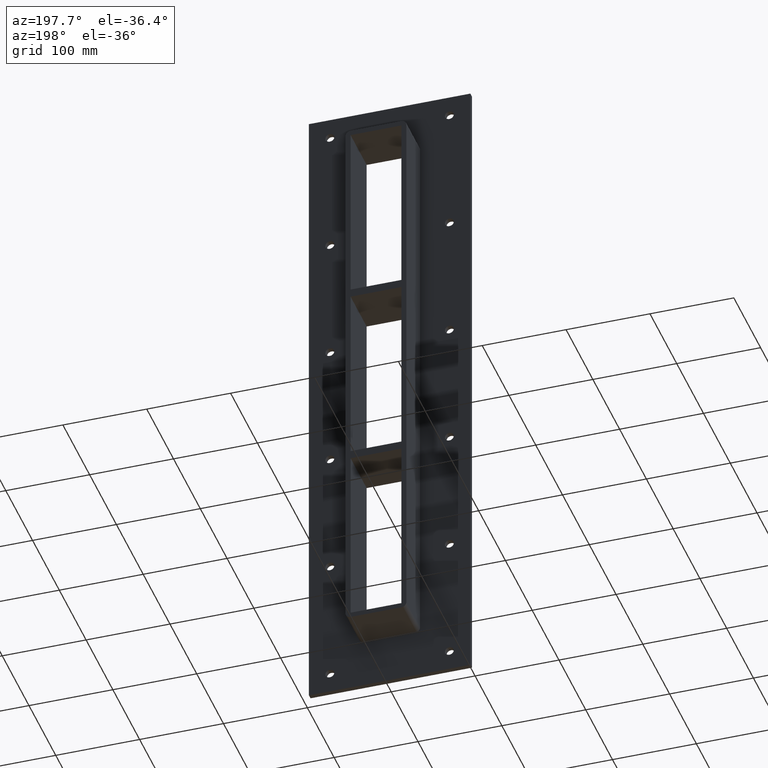
[diagram: clean part render]
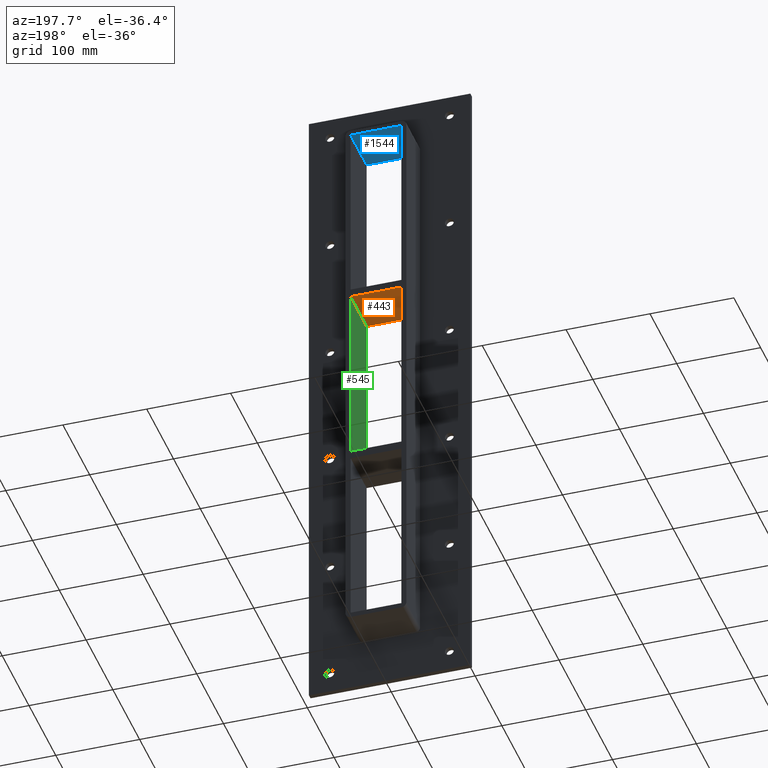
[diagram: same view with three faces highlighted in distinct colors, each labeled with its STEP entity id]
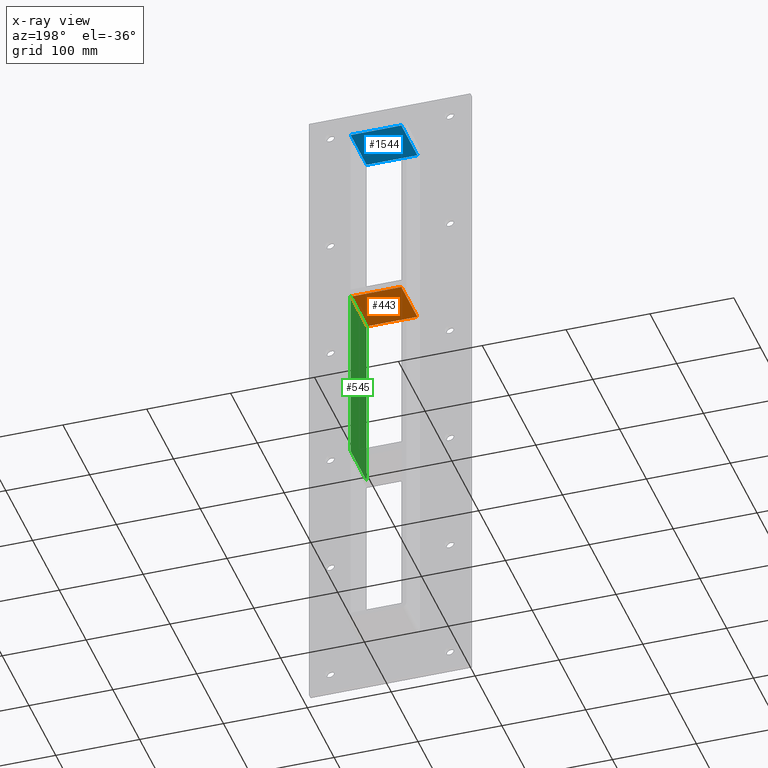
[diagram: x-ray of the same camera — body ghosted, the three highlighted faces saturated]
A machine part, auxiliary view with three faces highlighted in distinct colors.
The next image is the same camera in x-ray (body ghosted, the three faces saturated) — at least one of them is partly hidden behind the body in this view.
Their STEP definitions:

[orange] entity #443 — the highlighted planar face has unit normal (0, 0, -1).
#404=CARTESIAN_POINT('',(30.249999999996362,-3.0,108.99999999998919));
#405=DIRECTION('',(0.0,0.0,-1.0));
#406=DIRECTION('',(-1.0,0.0,0.0));
#407=AXIS2_PLACEMENT_3D('',#404,#405,#406);
#408=PLANE('',#407);
#409=CARTESIAN_POINT('',(30.249999999996362,-3.0,108.99999999998919));
#410=VERTEX_POINT('',#409);
#411=CARTESIAN_POINT('',(-30.249999999997076,-3.0,108.99999999998772));
#412=VERTEX_POINT('',#411);
#413=CARTESIAN_POINT('',(30.249999999996362,-3.0,108.99999999998919));
#414=DIRECTION('',(-1.0,0.0,0.0));
#415=VECTOR('',#414,60.499999999993435);
#416=LINE('',#413,#415);
#417=EDGE_CURVE('',#410,#412,#416,.T.);
#418=ORIENTED_EDGE('',*,*,#417,.T.);
#419=CARTESIAN_POINT('',(-30.249999999997076,57.0,108.99999999998772));
#420=VERTEX_POINT('',#419);
#421=CARTESIAN_POINT('',(-30.249999999999986,57.000000000000007,108.99999999998771));
#422=DIRECTION('',(0.0,-1.0,0.0));
#423=VECTOR('',#422,60.000000000000007);
#424=LINE('',#421,#423);
#425=EDGE_CURVE('',#420,#412,#424,.T.);
#426=ORIENTED_EDGE('',*,*,#425,.F.);
#427=CARTESIAN_POINT('',(30.249999999996358,57.0,108.99999999998919));
#428=VERTEX_POINT('',#427);
#429=CARTESIAN_POINT('',(30.249999999996362,57.0,108.99999999998919));
#430=DIRECTION('',(-1.0,0.0,0.0));
#431=VECTOR('',#430,60.499999999993435);
#432=LINE('',#429,#431);
#433=EDGE_CURVE('',#428,#420,#432,.T.);
#434=ORIENTED_EDGE('',*,*,#433,.F.);
#435=CARTESIAN_POINT('',(30.249999999999986,-3.0,108.99999999998919));
#436=DIRECTION('',(0.0,1.0,0.0));
#437=VECTOR('',#436,60.000000000000007);
#438=LINE('',#435,#437);
#439=EDGE_CURVE('',#410,#428,#438,.T.);
#440=ORIENTED_EDGE('',*,*,#439,.F.);
#441=EDGE_LOOP('',(#418,#426,#434,#440));
#442=FACE_OUTER_BOUND('',#441,.T.);
#443=ADVANCED_FACE('',(#442),#408,.T.);

[blue] entity #1544 — the highlighted planar face has unit normal (0, 0, 1).
#490=CARTESIAN_POINT('',(-30.249999999999986,57.0,337.0));
#491=VERTEX_POINT('',#490);
#498=CARTESIAN_POINT('',(-30.249999999999986,-3.0,337.0));
#499=VERTEX_POINT('',#498);
#500=CARTESIAN_POINT('',(-30.249999999999986,-3.0,337.0));
#501=DIRECTION('',(0.0,1.0,0.0));
#502=VECTOR('',#501,60.0);
#503=LINE('',#500,#502);
#504=EDGE_CURVE('',#499,#491,#503,.T.);
#552=CARTESIAN_POINT('',(30.249999999999986,-3.0,337.0));
#553=VERTEX_POINT('',#552);
#560=CARTESIAN_POINT('',(30.249999999999986,57.0,337.0));
#561=VERTEX_POINT('',#560);
#562=CARTESIAN_POINT('',(30.249999999999986,-3.0,337.0));
#563=DIRECTION('',(0.0,1.0,0.0));
#564=VECTOR('',#563,60.0);
#565=LINE('',#562,#564);
#566=EDGE_CURVE('',#553,#561,#565,.T.);
#1409=CARTESIAN_POINT('',(-30.249999999999986,-3.0,337.0));
#1410=DIRECTION('',(1.0,0.0,0.0));
#1411=VECTOR('',#1410,60.499999999999972);
#1412=LINE('',#1409,#1411);
#1413=EDGE_CURVE('',#499,#553,#1412,.T.);
#1528=CARTESIAN_POINT('',(-30.249999999999986,0.0,337.0));
#1529=DIRECTION('',(0.0,0.0,1.0));
#1530=DIRECTION('',(1.0,0.0,0.0));
#1531=AXIS2_PLACEMENT_3D('',#1528,#1529,#1530);
#1532=PLANE('',#1531);
#1533=ORIENTED_EDGE('',*,*,#504,.T.);
#1534=CARTESIAN_POINT('',(30.249999999999986,57.0,337.0));
#1535=DIRECTION('',(-1.0,0.0,0.0));
#1536=VECTOR('',#1535,60.499999999999972);
#1537=LINE('',#1534,#1536);
#1538=EDGE_CURVE('',#561,#491,#1537,.T.);
#1539=ORIENTED_EDGE('',*,*,#1538,.F.);
#1540=ORIENTED_EDGE('',*,*,#566,.F.);
#1541=ORIENTED_EDGE('',*,*,#1413,.F.);
#1542=EDGE_LOOP('',(#1533,#1539,#1540,#1541));
#1543=FACE_OUTER_BOUND('',#1542,.T.);
#1544=ADVANCED_FACE('',(#1543),#1532,.F.);

[green] entity #545 — the highlighted planar face has unit normal (1, 0, 0).
#409=CARTESIAN_POINT('',(30.249999999996362,-3.0,108.99999999998919));
#410=VERTEX_POINT('',#409);
#427=CARTESIAN_POINT('',(30.249999999996358,57.0,108.99999999998919));
#428=VERTEX_POINT('',#427);
#435=CARTESIAN_POINT('',(30.249999999999986,-3.0,108.99999999998919));
#436=DIRECTION('',(0.0,1.0,0.0));
#437=VECTOR('',#436,60.000000000000007);
#438=LINE('',#435,#437);
#439=EDGE_CURVE('',#410,#428,#438,.T.);
#515=CARTESIAN_POINT('',(30.249999999999986,0.0,337.0));
#516=DIRECTION('',(1.0,0.0,0.0));
#517=DIRECTION('',(0.0,0.0,-1.0));
#518=AXIS2_PLACEMENT_3D('',#515,#516,#517);
#519=PLANE('',#518);
#520=ORIENTED_EDGE('',*,*,#439,.T.);
#521=CARTESIAN_POINT('',(30.24999999999903,57.0,-109.00000000000091));
#522=VERTEX_POINT('',#521);
#523=CARTESIAN_POINT('',(30.249999999999986,57.0,-109.00000000000091));
#524=DIRECTION('',(0.0,0.0,1.0));
#525=VECTOR('',#524,217.99999999999008);
#526=LINE('',#523,#525);
#527=EDGE_CURVE('',#522,#428,#526,.T.);
#528=ORIENTED_EDGE('',*,*,#527,.F.);
#529=CARTESIAN_POINT('',(30.24999999999903,-3.0,-109.00000000000091));
#530=VERTEX_POINT('',#529);
#531=CARTESIAN_POINT('',(30.249999999999986,57.000000000000007,-109.00000000000091));
#532=DIRECTION('',(0.0,-1.0,0.0));
#533=VECTOR('',#532,60.000000000000007);
#534=LINE('',#531,#533);
#535=EDGE_CURVE('',#522,#530,#534,.T.);
#536=ORIENTED_EDGE('',*,*,#535,.T.);
#537=CARTESIAN_POINT('',(30.249999999999986,-3.0,108.99999999998917));
#538=DIRECTION('',(0.0,0.0,-1.0));
#539=VECTOR('',#538,217.99999999999008);
#540=LINE('',#537,#539);
#541=EDGE_CURVE('',#410,#530,#540,.T.);
#542=ORIENTED_EDGE('',*,*,#541,.F.);
#543=EDGE_LOOP('',(#520,#528,#536,#542));
#544=FACE_OUTER_BOUND('',#543,.T.);
#545=ADVANCED_FACE('',(#544),#519,.F.);